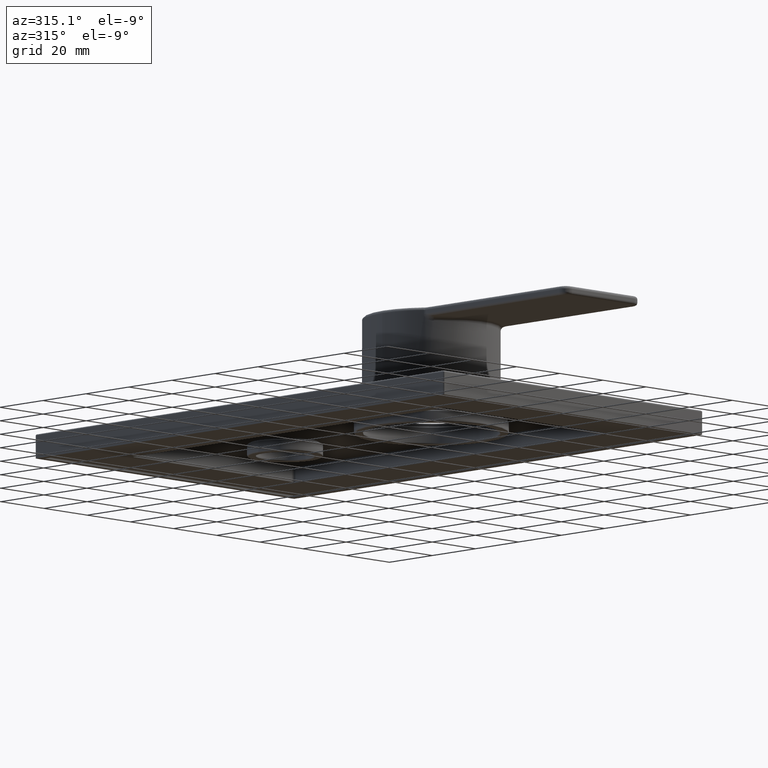
[diagram: clean part render]
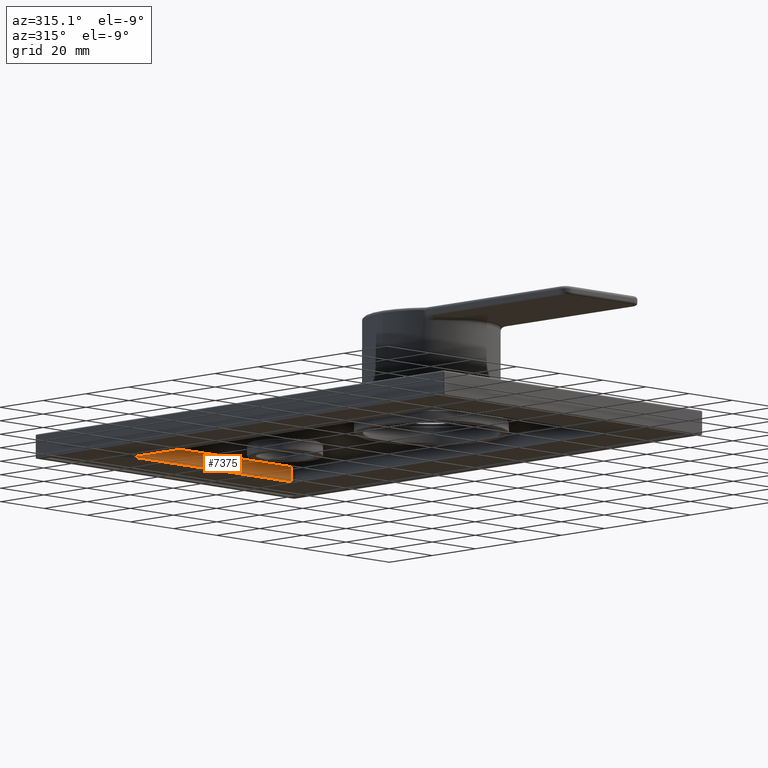
[diagram: same view with one face highlighted and labeled with its STEP entity id]
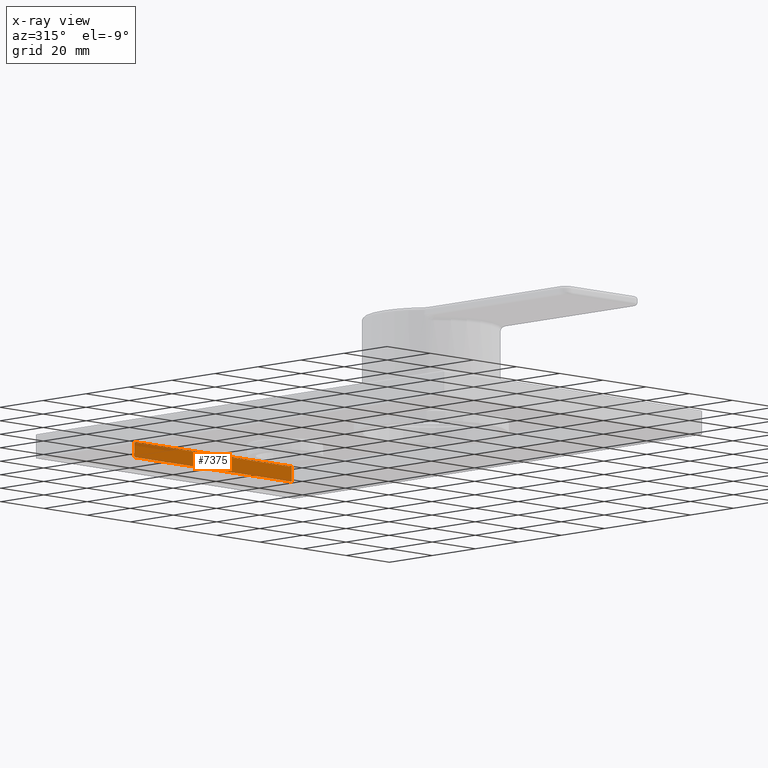
[diagram: x-ray of the same camera — body ghosted, the highlighted face saturated]
A machine part, auxiliary view. The second image highlights one B-rep face of the part: STEP entity #7375.
The next image is the same camera in x-ray: the body ghosted, the highlighted face saturated — about 6% of this face is hidden behind the body in this view.
In plain terms, the highlighted planar face has unit normal (0, -1, 0).
Its self-contained STEP definition (entity closure, byte-faithful):
#5701=DIRECTION('',(1.E0,0.E0,0.E0));
#5702=VECTOR('',#5701,7.3E1);
#5703=CARTESIAN_POINT('',(-3.65E1,1.015E2,-9.5E0));
#5704=LINE('',#5703,#5702);
#5809=DIRECTION('',(0.E0,0.E0,1.E0));
#5810=VECTOR('',#5809,5.E0);
#5811=CARTESIAN_POINT('',(3.65E1,1.015E2,-9.5E0));
#5812=LINE('',#5811,#5810);
#5813=DIRECTION('',(0.E0,0.E0,1.E0));
#5814=VECTOR('',#5813,5.E0);
#5815=CARTESIAN_POINT('',(-3.65E1,1.015E2,-9.5E0));
#5816=LINE('',#5815,#5814);
#5817=DIRECTION('',(1.E0,0.E0,0.E0));
#5818=VECTOR('',#5817,7.3E1);
#5819=CARTESIAN_POINT('',(-3.65E1,1.015E2,-4.5E0));
#5820=LINE('',#5819,#5818);
#6412=CARTESIAN_POINT('',(-3.65E1,1.015E2,-9.5E0));
#6413=CARTESIAN_POINT('',(3.65E1,1.015E2,-9.5E0));
#6414=VERTEX_POINT('',#6412);
#6415=VERTEX_POINT('',#6413);
#6444=CARTESIAN_POINT('',(-3.65E1,1.015E2,-4.5E0));
#6445=CARTESIAN_POINT('',(3.65E1,1.015E2,-4.5E0));
#6446=VERTEX_POINT('',#6444);
#6447=VERTEX_POINT('',#6445);
#7361=CARTESIAN_POINT('',(-3.75E1,1.015E2,-9.5E0));
#7362=DIRECTION('',(0.E0,-1.E0,0.E0));
#7363=DIRECTION('',(1.E0,0.E0,0.E0));
#7364=AXIS2_PLACEMENT_3D('',#7361,#7362,#7363);
#7365=PLANE('',#7364);
#7367=ORIENTED_EDGE('',*,*,#7366,.T.);
#7369=ORIENTED_EDGE('',*,*,#7368,.F.);
#7370=ORIENTED_EDGE('',*,*,#7100,.F.);
#7372=ORIENTED_EDGE('',*,*,#7371,.T.);
#7373=EDGE_LOOP('',(#7367,#7369,#7370,#7372));
#7374=FACE_OUTER_BOUND('',#7373,.F.);
#7375=ADVANCED_FACE('',(#7374),#7365,.T.);
#7100=EDGE_CURVE('',#6414,#6415,#5704,.T.);
#7366=EDGE_CURVE('',#6446,#6447,#5820,.T.);
#7368=EDGE_CURVE('',#6415,#6447,#5812,.T.);
#7371=EDGE_CURVE('',#6414,#6446,#5816,.T.);